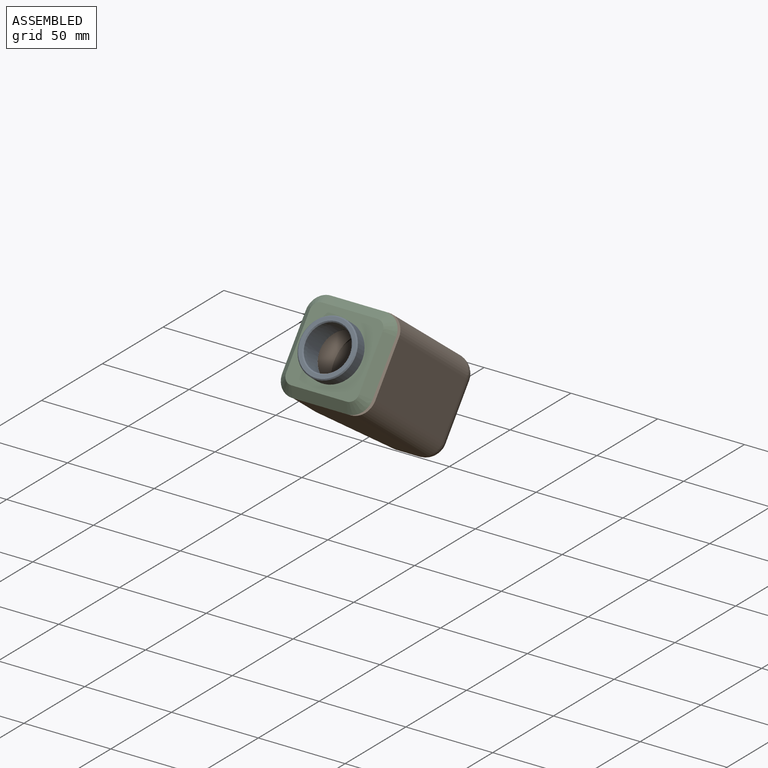
[diagram: assembled view]
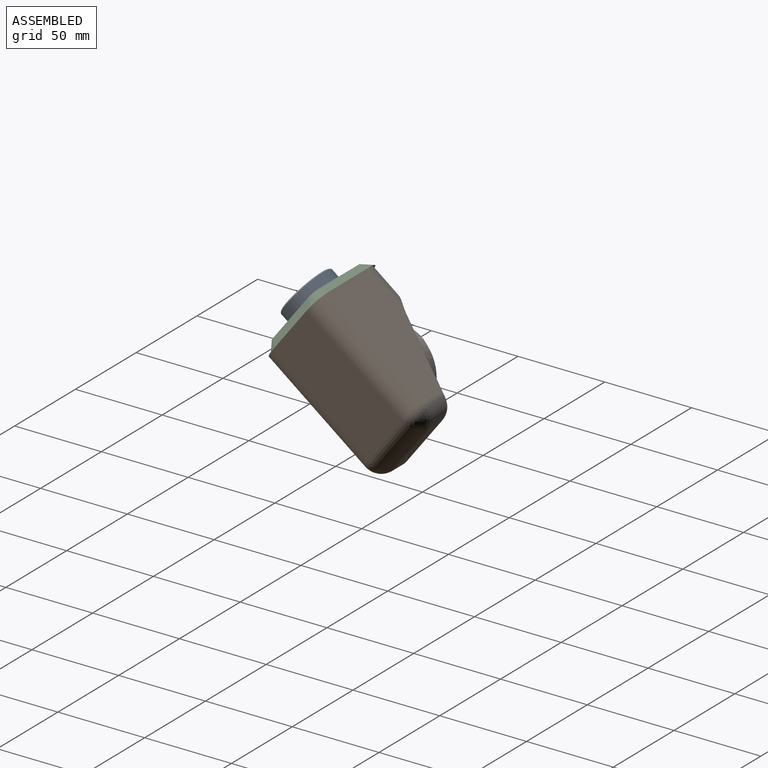
[diagram: assembled view, second angle]
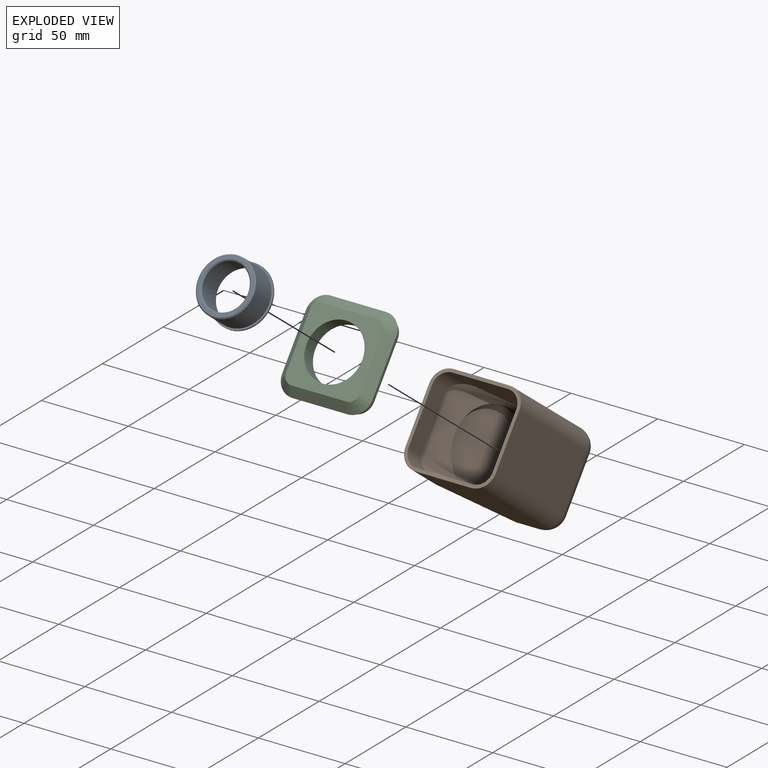
[diagram: exploded view]
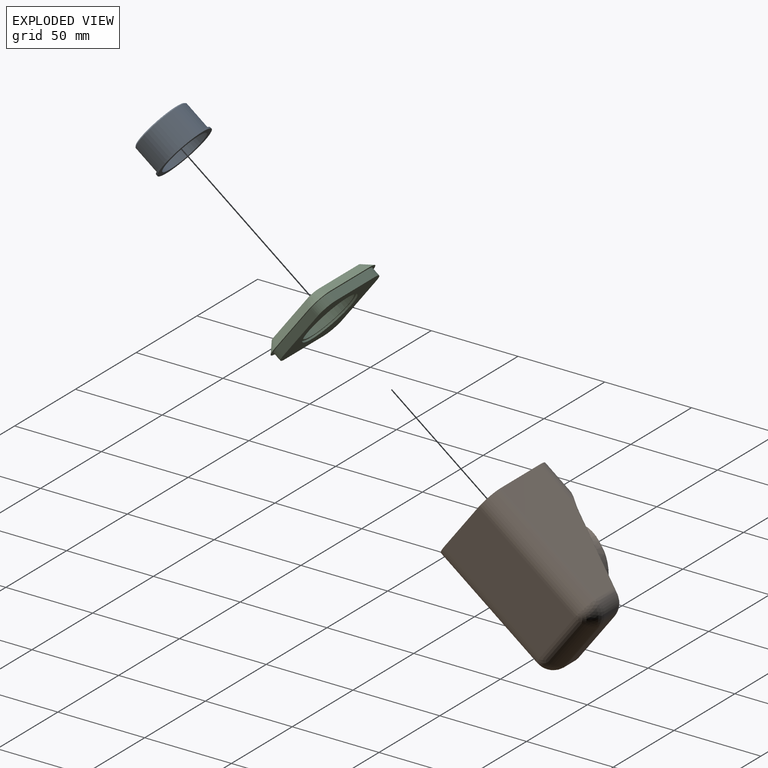
[diagram: exploded view, second angle]
ASSEMBLY  parts=3 mates=5
PART A: 11 faces, bbox 34x34x17.5 mm
  f0: plane 34x34mm, normal (0,0,-1), area 292.2mm2, adj f1,f2
  f1: cylinder r=14mm len=28mm, axis (0,0,1), area 1132.1mm2, adj f0,f3
  f2: cylinder r=17mm len=34mm, axis (0,0,-1), area 106.8mm2, adj f0,f4
  f3: cone r=0mm half-angle=45deg, axis (0,0,-1), area 73mm2, adj f1,f5
  f4: plane 34x34mm, normal (0,0,1), area 103.7mm2, adj f2,f6
  f5: plane 26.8x26.8mm, normal (0,0,-1), area 57.4mm2, adj f3,f7
  f6: cylinder r=16mm len=32mm, axis (0,0,1), area 1601.5mm2, adj f4,f8
  f7: cylinder r=12.7mm len=25.4mm, axis (0,0,1), area 276.1mm2, adj f5,f9
  f8: cone r=0mm half-angle=45deg, axis (0,0,-1), area 83.7mm2, adj f6,f10
  f9: cone r=0mm half-angle=45deg, axis (0,0,1), area 69.3mm2, adj f7,f10
  f10: plane 30.8x30.8mm, normal (0,0,1), area 189.3mm2, adj f8,f9
PART B: 64 faces, bbox 55.6x83.6x55.6 mm
  f0: plane 52x52mm, normal (0,-1,0), area 333.3mm2, adj f1,f26,f27,f28,f29,f30,f31,f32
  f1: plane 70x32mm, normal (0,0,1), area 2240mm2, adj f0,f2,f26,f32
  f2: cylinder r=8.2mm len=32mm, axis (-1,0,0), area 412.2mm2, adj f1,f3,f24,f25
  f3: sphere r=8.2mm, area 67.2mm2, adj f2,f4,f26
  f4: cylinder r=8.2mm len=12.97mm, axis (0,0,-1), area 140mm2, adj f3,f5,f23,f24,f27
  f5: offset ~9.08x9.02mm, area 14.5mm2, adj f4,f6,f22,f23,f27
  f6: plane 45.69x21.99mm, normal (-0.71,-0.27,-0.65), area 232.8mm2, adj f5,f7,f18,f19,f22,f27
  f7: plane 40.57x22.45mm, normal (0,-0.38,-0.92), area 586.8mm2, adj f6,f8,f9,f10,f12,f13,f18,f19
  f8: offset ~16.94x13.09mm, area 55.5mm2, adj f7,f9,f13,f30,f31
  f9: offset ~7.52x7.52mm, area 4mm2, adj f7,f8,f10,f30
  f10: cylinder r=8.2mm len=35.26mm, axis (-1,0,0), area 108.6mm2, adj f7,f9,f11,f12,f29
  f11: offset ~7.46x7.46mm, area 0mm2, adj f10,f28
  f12: offset ~7.52x7.52mm, area 3.9mm2, adj f7,f10,f18,f28
  f13: plane 45.69x21.99mm, normal (0.71,-0.27,-0.65), area 233mm2, adj f7,f8,f14,f19,f22,f31
  f14: offset ~9.08x9.02mm, area 14.5mm2, adj f13,f15,f17,f22,f31
  f15: offset ~13.03x12.88mm, area 27.4mm2, adj f14,f16,f17,f22
  f16: cylinder r=8.2mm len=39.86mm, axis (-1,0,0), area 346.8mm2, adj f15,f22,f23,f24
  f17: cylinder r=8.2mm len=12.97mm, axis (0,0,1), area 141.2mm2, adj f14,f15,f24,f25,f31
  f18: offset ~16.94x13.09mm, area 55.5mm2, adj f6,f7,f12,f27,f28
  f19: cylinder r=22.2mm len=44.4mm, axis (0,0.38,0.92), area 335mm2, adj f6,f7,f13,f20,f22
  f20: cone r=18.73mm half-angle=45deg, axis (0,-0.38,-0.92), area 542.5mm2, adj f19,f21
  f21: plane 38.51x35.56mm, normal (0,-0.38,-0.92), area 1164.7mm2, adj f20
  f22: plane 40.55x17.8mm, normal (0,-0.38,-0.92), area 396.7mm2, adj f5,f6,f13,f14,f15,f16,f19,f23
  f23: offset ~13.03x12.88mm, area 29.9mm2, adj f4,f5,f16,f22
  f24: plane 32x8.33mm, normal (0,-1,0), area 266.4mm2, adj f2,f4,f16,f17
  f25: sphere r=8.2mm, area 144mm2, adj f2,f17,f32
  f26: cylinder r=8.2mm len=70mm, axis (0,-1,0), area 901.6mm2, adj f0,f1,f3,f27
  f27: plane 70.02x32.02mm, normal (-1,0,0), area 1802.6mm2, adj f0,f4,f5,f6,f18,f26,f28
  f28: cylinder r=8.2mm len=24.78mm, axis (0,1,0), area 228mm2, adj f0,f11,f12,f18,f27,f29
  f29: plane 32x13.01mm, normal (0,0,-1), area 416.2mm2, adj f0,f10,f28,f30
  f30: cylinder r=8.2mm len=24.78mm, axis (0,-1,0), area 234.7mm2, adj f0,f8,f9,f29,f31
  f31: plane 70.02x32.02mm, normal (1,0,0), area 1802.6mm2, adj f0,f8,f13,f14,f17,f30,f32
  f32: cylinder r=8.2mm len=70mm, axis (0,1,0), area 901.6mm2, adj f0,f1,f25,f31
  f33: cylinder r=10mm len=26.04mm, axis (0,-1,0), area 296.1mm2, adj f0,f34,f56,f57,f63
  f34: bspline ~13.34x9.49mm, area 72.1mm2, adj f33,f35,f55,f56
  f35: plane 42.02x20.12mm, normal (0,0.38,0.92), area 524.1mm2, adj f34,f36,f51,f52,f54,f55
  f36: cylinder r=24mm len=48mm, axis (0,0.38,0.92), area 247.4mm2, adj f35,f37,f49,f51,f55
  f37: plane 42.01x15.43mm, normal (0,0.38,0.92), area 331.5mm2, adj f36,f38,f47,f48,f51,f55
  f38: bspline ~5.44x5.38mm, area 20.7mm2, adj f37,f39,f46,f51
  f39: cylinder r=10mm len=13.74mm, axis (0,0,-1), area 177.7mm2, adj f38,f40,f45,f46,f59
  f40: sphere r=10mm, area 100mm2, adj f39,f41,f60
  f41: cylinder r=10mm len=32mm, axis (-1,0,0), area 502.7mm2, adj f40,f42,f45,f61
  f42: sphere r=10mm, area 214.2mm2, adj f41,f43,f62
  f43: cylinder r=10mm len=13.74mm, axis (0,0,1), area 177.7mm2, adj f42,f44,f45,f47,f63
  f44: bspline ~9.43x9.28mm, area 29.1mm2, adj f43,f47,f48
  f45: plane 32x8.33mm, normal (0,1,0), area 266.4mm2, adj f39,f41,f43,f48
  f46: bspline ~9.43x9.28mm, area 29.1mm2, adj f38,f39,f48
  f47: bspline ~5.44x5.38mm, area 20.7mm2, adj f37,f43,f44,f55
  f48: cylinder r=10mm len=41.24mm, axis (-1,0,0), area 431mm2, adj f37,f44,f45,f46
  f49: cone r=20mm half-angle=45deg, axis (0,-0.38,-0.92), area 781.9mm2, adj f36,f50
  f50: plane 40x36.94mm, normal (0,0.38,0.92), area 1256.6mm2, adj f49
  f51: plane 45.88x22.88mm, normal (0.71,0.27,0.65), area 270mm2, adj f35,f36,f37,f38,f52,f59
  f52: bspline ~13.34x9.49mm, area 72.1mm2, adj f35,f51,f53,f58
  f53: bspline ~3.92x3.92mm, area 3.8mm2, adj f52,f54,f58
  f54: cylinder r=10mm len=35.84mm, axis (-1,0,0), area 133.5mm2, adj f35,f53,f56,f57
  f55: plane 45.88x22.88mm, normal (-0.71,0.27,0.65), area 270mm2, adj f34,f35,f36,f37,f47,f63
  f56: bspline ~3.92x3.92mm, area 3.8mm2, adj f33,f34,f54
  f57: plane 32x13.01mm, normal (0,0,1), area 416.2mm2, adj f0,f33,f54,f58
  f58: cylinder r=10mm len=26.04mm, axis (0,1,0), area 296.1mm2, adj f0,f52,f53,f57,f59
  f59: plane 70x32mm, normal (1,0,0), area 1838.6mm2, adj f0,f39,f51,f58,f60
  f60: cylinder r=10mm len=70mm, axis (0,-1,0), area 1099.6mm2, adj f0,f40,f59,f61
  f61: plane 70x32mm, normal (0,0,-1), area 2240mm2, adj f0,f41,f60,f62
  f62: cylinder r=10mm len=70mm, axis (0,1,0), area 1099.6mm2, adj f0,f42,f61,f63
  f63: plane 70x32mm, normal (-1,0,0), area 1838.6mm2, adj f0,f33,f43,f55,f62
PART C: 22 faces, bbox 52x10x52 mm
  f0: plane 48.4x48.4mm, normal (0,1,0), area 1350mm2, adj f12,f14,f15,f16,f17,f18,f19,f20
  f1: cylinder r=16mm len=32mm, axis (0,-1,0), area 904.8mm2, adj f2,f11
  f2: plane 42x42mm, normal (0,-1,0), area 938.3mm2, adj f1,f3,f4,f5,f6,f7,f8,f9
  f3: cone r=5mm half-angle=45deg, axis (0,1,0), area 83.3mm2, adj f2,f4,f5,f13
  f4: plane 32x5mm, normal (0,-0.71,0.71), area 226.3mm2, adj f2,f3,f6,f13
  f5: plane 32x5mm, normal (0.71,-0.71,0), area 226.3mm2, adj f2,f3,f7,f13
  f6: cone r=5mm half-angle=45deg, axis (0,1,0), area 83.3mm2, adj f2,f4,f8,f13
  f7: cone r=5mm half-angle=45deg, axis (0,1,0), area 83.3mm2, adj f2,f5,f9,f13
  f8: plane 32x5mm, normal (-0.71,-0.71,0), area 226.3mm2, adj f2,f6,f10,f13
  f9: plane 32x5mm, normal (0,-0.71,-0.71), area 226.3mm2, adj f2,f7,f10,f13
  f10: cone r=5mm half-angle=45deg, axis (0,1,0), area 83.3mm2, adj f2,f8,f9,f13
  f11: plane 34.5x34.5mm, normal (0,1,0), area 130.6mm2, adj f1,f12
  f12: cylinder r=17.25mm len=34.5mm, axis (0,1,0), area 108.4mm2, adj f0,f11
  f13: plane 52x52mm, normal (0,1,0), area 333.3mm2, adj f3,f4,f5,f6,f7,f8,f9,f10
  f14: cylinder r=8.2mm len=8.2mm, axis (0,1,0), area 64.4mm2, adj f0,f13,f19,f21
  f15: cylinder r=8.2mm len=8.2mm, axis (0,-1,0), area 64.4mm2, adj f0,f13,f20,f21
  f16: cylinder r=8.2mm len=8.2mm, axis (0,-1,0), area 64.4mm2, adj f0,f13,f18,f19
  f17: cylinder r=8.2mm len=8.2mm, axis (0,1,0), area 64.4mm2, adj f0,f13,f18,f20
  f18: plane 32x5mm, normal (1,0,0), area 160mm2, adj f0,f13,f16,f17
  f19: plane 32x5mm, normal (0,0,-1), area 160mm2, adj f0,f13,f14,f16
  f20: plane 32x5mm, normal (0,0,1), area 160mm2, adj f0,f13,f15,f17
  f21: plane 32x5mm, normal (-1,0,0), area 160mm2, adj f0,f13,f14,f15
PLACE A rot(axis=(1,0,0),52.6deg) t=(11.87,61.08,-86.48)mm
PLACE B rot(axis=(-0.31,-0.9,0.31),95.9deg) t=(39.46,55.25,-114.75)mm
PLACE C rot(axis=(-0.31,-0.9,0.31),95.9deg) t=(37.87,51.28,-111.71)mm
MATE planar C.f12 <-> B.f0  axis (0,0.79,-0.61) through (11.87,71.03,-94.09)mm
MATE planar C.f18 <-> B.f27  axis (0,0.61,0.79) through (11.87,87.71,-76.37)mm
MATE parallel A.f1 <-> C.f1  axis (0,0.79,-0.61) through (11.87,75.01,-97.12)mm
MATE planar A.f8 <-> C.f1  axis (0,-0.79,0.61) through (11.87,74.21,-96.51)mm
MATE cylindrical A.f1 <-> C.f1  axis (0,-0.79,0.61) through (11.87,74.21,-96.51)mm
